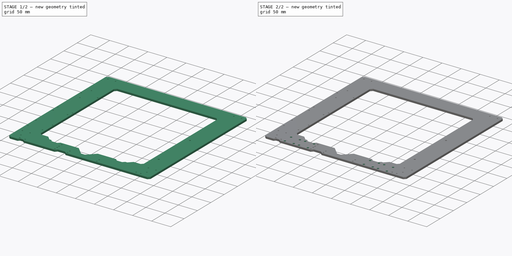
[diagram: build sequence overview — one tinted view per stage of 2, left to right]
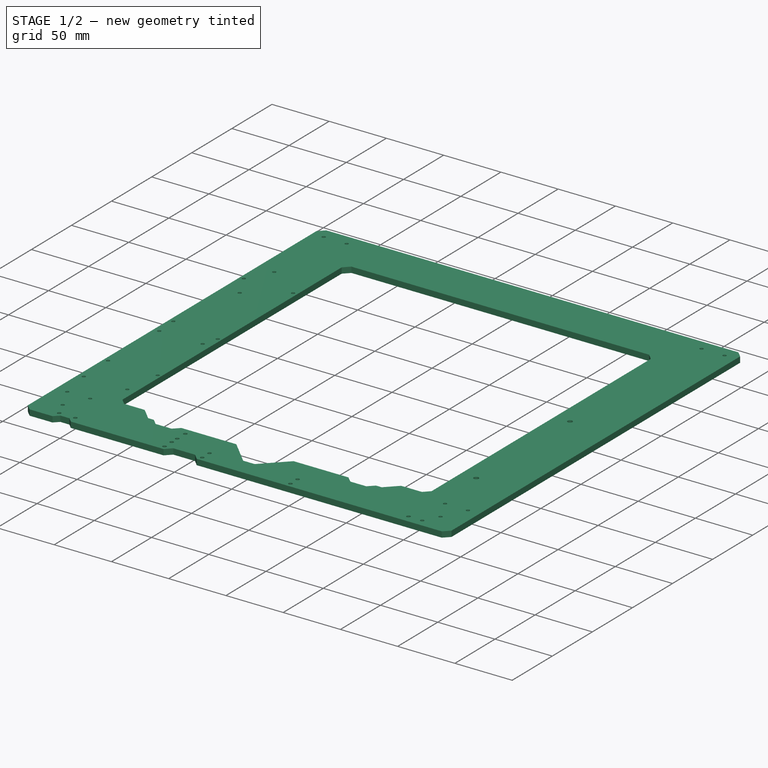
[diagram: stage 1 of 2 — iso view after this stage's code; geometry added in this stage tinted green]
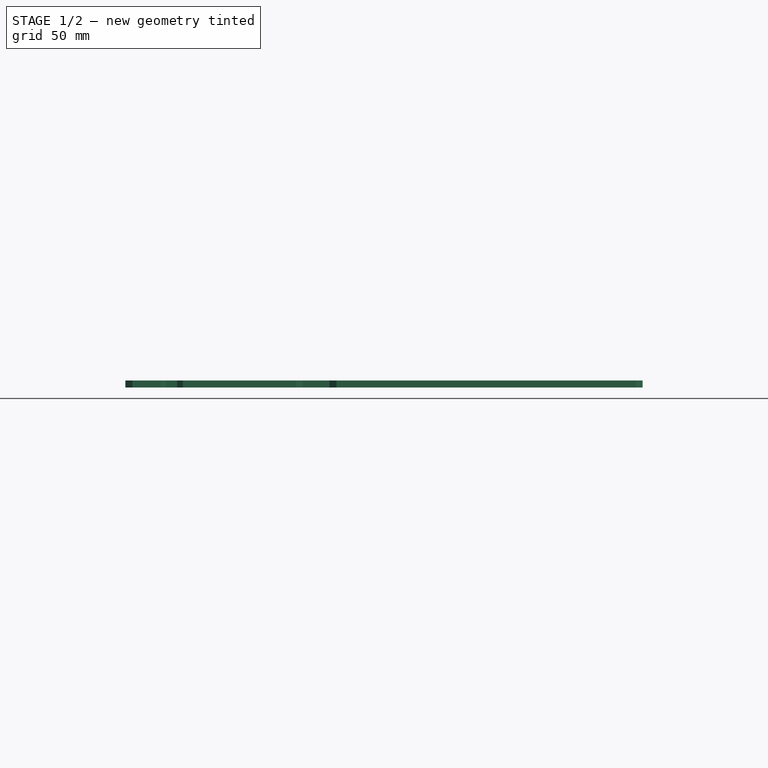
[diagram: stage 1 of 2 — front view after this stage's code; geometry added in this stage tinted green]
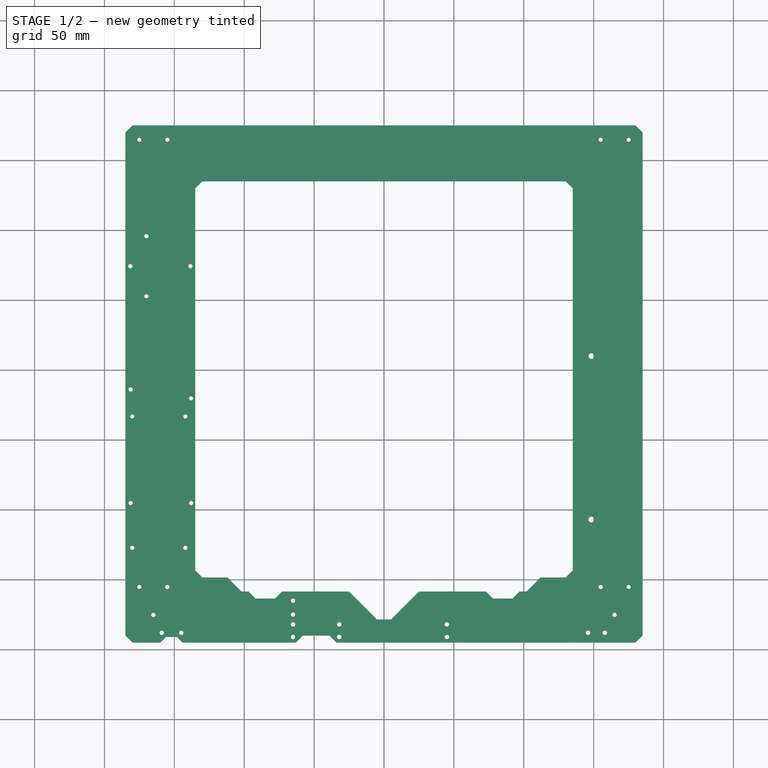
[diagram: stage 1 of 2 — top view after this stage's code; geometry added in this stage tinted green]
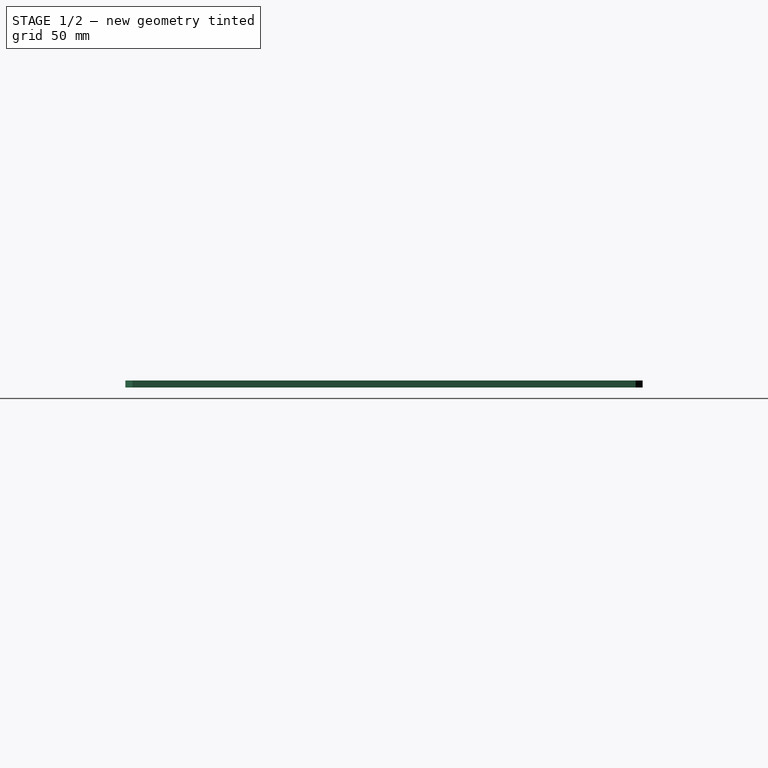
[diagram: stage 1 of 2 — right view after this stage's code; geometry added in this stage tinted green]
FCSTD DOCUMENT  (FreeCAD 0.21R33771 (Git))
Label: _MK3-Frame
License: Creative Commons Attribution 4.0
LicenseURL: https://creativecommons.org/licenses/by/4.0/
objects: Sketcher::SketchObject×3, PartDesign::Pocket×2, PartDesign::Pad×1, PartDesign::Body×1
note: 10 computed .brp shape members not serialized (recipe doc carries the construction recipe); baked Part::Feature solids carry a one-line shape summary decoded from their .brp

FEATURE [Sketcher::SketchObject] Sketch
  FullyConstrained = true
  MapMode = 5
  sketch-geometry (40):
    g0: LineSegment StartX=-180 StartY=375 StartZ=0 EndX=180 EndY=375 EndZ=0
    g1: LineSegment StartX=180 StartY=375 StartZ=0 EndX=185 EndY=370 EndZ=0
    g2: LineSegment StartX=185 StartY=370 StartZ=0 EndX=185 EndY=10 EndZ=0
    g3: LineSegment StartX=185 StartY=10 StartZ=0 EndX=180 EndY=5 EndZ=0
    g4: LineSegment StartX=180 StartY=5 StartZ=0 EndX=-34 EndY=5 EndZ=0
    g5: LineSegment StartX=-34 StartY=5 StartZ=0 EndX=-39 EndY=10 EndZ=0
    g6: LineSegment StartX=-39 StartY=10 StartZ=0 EndX=-58 EndY=10 EndZ=0
    g7: LineSegment StartX=-58 StartY=10 StartZ=0 EndX=-63 EndY=5 EndZ=0
    g8: LineSegment StartX=-63 StartY=5 StartZ=0 EndX=-144 EndY=5 EndZ=0
    g9: LineSegment StartX=-144 StartY=5 StartZ=0 EndX=-148 EndY=9 EndZ=0
    g10: LineSegment StartX=-148 StartY=9 StartZ=0 EndX=-156 EndY=9 EndZ=0
    g11: LineSegment StartX=-156 StartY=9 StartZ=0 EndX=-160 EndY=5 EndZ=0
    g12: LineSegment StartX=-160 StartY=5 StartZ=0 EndX=-180 EndY=5 EndZ=0
    g13: LineSegment StartX=-180 StartY=5 StartZ=0 EndX=-185 EndY=10 EndZ=0
    g14: LineSegment StartX=-185 StartY=10 StartZ=0 EndX=-185 EndY=370 EndZ=0
    g15: LineSegment StartX=-185 StartY=370 StartZ=0 EndX=-180 EndY=375 EndZ=0
    g16: LineSegment StartX=-135 StartY=56.5 StartZ=0 EndX=-135 EndY=330 EndZ=0
    g17: LineSegment StartX=-135 StartY=330 StartZ=0 EndX=-130 EndY=335 EndZ=0
    g18: LineSegment StartX=-130 StartY=335 StartZ=0 EndX=130 EndY=335 EndZ=0
    g19: LineSegment StartX=130 StartY=335 StartZ=0 EndX=135 EndY=330 EndZ=0
    g20: LineSegment StartX=135 StartY=330 StartZ=0 EndX=135 EndY=56.5 EndZ=0
    g21: LineSegment StartX=135 StartY=56.5 StartZ=0 EndX=130 EndY=51.5 EndZ=0
    g22: LineSegment StartX=130 StartY=51.5 StartZ=0 EndX=112 EndY=51.5 EndZ=0
    g23: LineSegment StartX=112 StartY=51.5 StartZ=0 EndX=102 EndY=41.5 EndZ=0
    g24: LineSegment StartX=102 StartY=41.5 StartZ=0 EndX=97 EndY=41.5 EndZ=0
    g25: LineSegment StartX=97 StartY=41.5 StartZ=0 EndX=92 EndY=36.5 EndZ=0
    g26: LineSegment StartX=92 StartY=36.5 StartZ=0 EndX=78 EndY=36.5 EndZ=0
    g27: LineSegment StartX=78 StartY=36.5 StartZ=0 EndX=73 EndY=41.5 EndZ=0
    g28: LineSegment StartX=73 StartY=41.5 StartZ=0 EndX=25 EndY=41.5 EndZ=0
    g29: LineSegment StartX=25 StartY=41.5 StartZ=0 EndX=5 EndY=21.5 EndZ=0
    g30: LineSegment StartX=5 StartY=21.5 StartZ=0 EndX=-5 EndY=21.5 EndZ=0
    g31: LineSegment StartX=-5 StartY=21.5 StartZ=0 EndX=-25 EndY=41.5 EndZ=0
    g32: LineSegment StartX=-25 StartY=41.5 StartZ=0 EndX=-73 EndY=41.5 EndZ=0
    g33: LineSegment StartX=-73 StartY=41.5 StartZ=0 EndX=-78 EndY=36.5 EndZ=0
    g34: LineSegment StartX=-78 StartY=36.5 StartZ=0 EndX=-92 EndY=36.5 EndZ=0
    g35: LineSegment StartX=-92 StartY=36.5 StartZ=0 EndX=-97 EndY=41.5 EndZ=0
    g36: LineSegment StartX=-97 StartY=41.5 StartZ=0 EndX=-102 EndY=41.5 EndZ=0
    g37: LineSegment StartX=-102 StartY=41.5 StartZ=0 EndX=-112 EndY=51.5 EndZ=0
    g38: LineSegment StartX=-112 StartY=51.5 StartZ=0 EndX=-130 EndY=51.5 EndZ=0
    g39: LineSegment StartX=-130 StartY=51.5 StartZ=0 EndX=-135 EndY=56.5 EndZ=0
  constraints (117):
    c: Coincident(g0,g1)
    c: Coincident(g1,g2)
    c: Vertical(g2)
    c: Coincident(g2,g3)
    c: Coincident(g3,g4)
    c: Horizontal(g4)
    c: Coincident(g4,g5)
    c: Coincident(g5,g6)
    c: Horizontal(g6)
    c: Coincident(g6,g7)
    c: Coincident(g7,g8)
    c: Horizontal(g8)
    c: Coincident(g8,g9)
    c: Coincident(g9,g10)
    c: Horizontal(g10)
    c: Coincident(g10,g11)
    c: Coincident(g11,g12)
    c: Coincident(g12,g13)
    c: Coincident(g13,g14)
    c: Vertical(g14)
    c: Coincident(g14,g15)
    c: Coincident(g15,g0)
    c: Symmetric(g0,g0,g-2)
    c: DistanceX(g0,g0) = 360
    c: Angle(g15,g0) = 2.35619
    c: DistanceY(g14,g0) = 5
    c: Equal(g15,g1)
    c: Perpendicular(g15,g1)
    c: Horizontal(g12)
    c: DistanceY(g-1,g12) = 5
    c: Perpendicular(g13,g15)
    c: Equal(g13,g15)
    c: Perpendicular(g3,g13)
    c: Equal(g3,g13)
    c: Horizontal(g4,g7)
    c: Horizontal(g11,g8)
    c: Perpendicular(g11,g13)
    c: DistanceY(g11,g10) = 4
    c: Perpendicular(g9,g11)
    c: DistanceX(g11,g8) = 16
    c: Perpendicular(g7,g9)
    c: Perpendicular(g5,g7)
    c: Horizontal(g6,g13)
    c: DistanceX(g8,g8) = 81
    c: DistanceX(g7,g4) = 29
    c: DistanceX(g4,g-1) = 34
    c: Vertical(g16)
    c: Coincident(g16,g17)
    c: Coincident(g17,g18)
    c: Coincident(g18,g19)
    c: Coincident(g19,g20)
    c: Vertical(g20)
    c: Coincident(g20,g21)
    c: Coincident(g21,g22)
    c: Horizontal(g22)
    c: Coincident(g22,g23)
    c: Coincident(g23,g24)
    c: Horizontal(g24)
    c: Coincident(g24,g25)
    c: Coincident(g25,g26)
    c: Horizontal(g26)
    c: Coincident(g26,g27)
    c: Coincident(g27,g28)
    c: Horizontal(g28)
    c: Coincident(g28,g29)
    c: Coincident(g29,g30)
    c: Horizontal(g30)
    c: Symmetric(g17,g18,g-2)
    c: Perpendicular(g17,g19)
    c: Equal(g19,g17)
    c: Equal(g15,g17)
    c: Parallel(g15,g17)
    c: DistanceX(g16,g19) = 270
    c: DistanceY(g12,g17) = 330
    c: DistanceY(g12,g0) = 370
    c: Coincident(g30,g31)
    c: Coincident(g31,g32)
    c: Horizontal(g32)
    c: Coincident(g32,g33)
    c: Coincident(g33,g34)
    c: Horizontal(g34)
    c: Coincident(g34,g35)
    c: Coincident(g35,g36)
    c: Coincident(g36,g37)
    c: Coincident(g37,g38)
    c: Horizontal(g38)
    c: Coincident(g38,g39)
    c: Coincident(g39,g16)
    c: Perpendicular(g21,g19)
    c: Equal(g19,g21)
    c: DistanceY(g21,g18) = 283.5
    c: Equal(g21,g39)
    c: Perpendicular(g21,g39)
    c: Horizontal(g22,g37)
    c: Horizontal(g35,g32)
    c: Horizontal(g27,g24)
    c: Equal(g38,g22)
    c: Horizontal(g36)
    c: Horizontal(g33,g26)
    c: Equal(g31,g29)
    c: Perpendicular(g31,g29)
    c: Symmetric(g28,g31,g-2)
    c: DistanceY(g4,g30) = 16.5
    c: DistanceY(g3,g27) = 36.5
    c: DistanceX(g31,g28) = 50
    c: Equal(g32,g28)
    c: DistanceX(g32,g27) = 146
    c: Perpendicular(g33,g31)
    c: Perpendicular(g29,g27)
    c: DistanceY(g33,g32) = 5
    c: Equal(g34,g26)
    c: Perpendicular(g35,g33)
    c: DistanceX(g35,g32) = 24
    c: Perpendicular(g25,g27)
    c: Parallel(g23,g21)
    c: Parallel(g39,g37)
    c: DistanceX(g37,g22) = 224
FEATURE [PartDesign::Pad] Pad
  Direction = (0,0,1)
  Length = 5
  Length2 = 10
  Profile = -> Sketch
  ReferenceAxis = -> Sketch [N_Axis]
  Refine = true
  Type = 0
FEATURE [Sketcher::SketchObject] Sketch001
  AttachmentOffset = pos=(0,0,5) rot=(0,0,1;0rad)
  ExternalGeometry = -> [Sketch]
  FullyConstrained = true
  MapMode = 5
  Placement = pos=(0,0,5) rot=(0,0,1;0rad)
  expr: .AttachmentOffset.Base.z = Pad.Length
  expr: .Placement.Base.z = Pad.Length
  sketch-geometry (37):
    g0: Circle CenterX=-175 CenterY=364.8 CenterZ=0 NormalX=0 NormalY=0 NormalZ=1 AngleXU=0 Radius=1.5
    g1: Circle CenterX=-155 CenterY=364.8 CenterZ=0 NormalX=0 NormalY=0 NormalZ=1 AngleXU=0 Radius=1.5
    g2: Circle CenterX=155 CenterY=364.8 CenterZ=0 NormalX=0 NormalY=0 NormalZ=1 AngleXU=0 Radius=1.5
    g3: Circle CenterX=175 CenterY=364.8 CenterZ=0 NormalX=0 NormalY=0 NormalZ=1 AngleXU=0 Radius=1.5
    g4: Circle CenterX=-175 CenterY=44.8 CenterZ=0 NormalX=0 NormalY=0 NormalZ=1 AngleXU=0 Radius=1.5
    g5: Circle CenterX=-155 CenterY=44.8 CenterZ=0 NormalX=0 NormalY=0 NormalZ=1 AngleXU=0 Radius=1.5
    g6: Circle CenterX=155 CenterY=44.8 CenterZ=0 NormalX=0 NormalY=0 NormalZ=1 AngleXU=0 Radius=1.5
    g7: Circle CenterX=175 CenterY=44.8 CenterZ=0 NormalX=0 NormalY=0 NormalZ=1 AngleXU=0 Radius=1.5
    g8: GeomPoint X=0 Y=5 Z=0
    g9: Circle CenterX=-32 CenterY=18 CenterZ=0 NormalX=0 NormalY=0 NormalZ=1 AngleXU=0 Radius=1.6
    g10: Circle CenterX=-32 CenterY=9 CenterZ=0 NormalX=0 NormalY=0 NormalZ=1 AngleXU=0 Radius=1.6
    g11: Circle CenterX=-65 CenterY=18 CenterZ=0 NormalX=0 NormalY=0 NormalZ=1 AngleXU=0 Radius=1.6
    g12: Circle CenterX=-65 CenterY=9 CenterZ=0 NormalX=0 NormalY=0 NormalZ=1 AngleXU=0 Radius=1.6
    g13: Circle CenterX=45 CenterY=18 CenterZ=0 NormalX=0 NormalY=0 NormalZ=1 AngleXU=0 Radius=1.6
    g14: Circle CenterX=45 CenterY=9 CenterZ=0 NormalX=0 NormalY=0 NormalZ=1 AngleXU=0 Radius=1.6
    g15: Circle CenterX=-65 CenterY=25 CenterZ=0 NormalX=0 NormalY=0 NormalZ=1 AngleXU=0 Radius=1.6
    g16: Circle CenterX=-65 CenterY=35 CenterZ=0 NormalX=0 NormalY=0 NormalZ=1 AngleXU=0 Radius=1.6
    g17: Circle CenterX=-165 CenterY=24.8 CenterZ=0 NormalX=0 NormalY=0 NormalZ=1 AngleXU=0 Radius=1.5
    g18: Circle CenterX=-159 CenterY=12 CenterZ=0 NormalX=0 NormalY=0 NormalZ=1 AngleXU=0 Radius=1.6
    g19: Circle CenterX=-145 CenterY=12 CenterZ=0 NormalX=0 NormalY=0 NormalZ=1 AngleXU=0 Radius=1.6
    g20: Circle CenterX=165 CenterY=24.8 CenterZ=0 NormalX=0 NormalY=0 NormalZ=1 AngleXU=0 Radius=1.5
    g21: Circle CenterX=146 CenterY=12 CenterZ=0 NormalX=0 NormalY=0 NormalZ=1 AngleXU=0 Radius=1.6
    g22: Circle CenterX=158 CenterY=12 CenterZ=0 NormalX=0 NormalY=0 NormalZ=1 AngleXU=0 Radius=1.6
    g23: Circle CenterX=-142.1 CenterY=72.8 CenterZ=0 NormalX=0 NormalY=0 NormalZ=1 AngleXU=0 Radius=1.5
    g24: Circle CenterX=-138 CenterY=104.8 CenterZ=0 NormalX=0 NormalY=0 NormalZ=1 AngleXU=0 Radius=1.5
    g25: Circle CenterX=-180.1 CenterY=72.8 CenterZ=0 NormalX=0 NormalY=0 NormalZ=1 AngleXU=0 Radius=1.5
    g26: Circle CenterX=-181.3 CenterY=186.1 CenterZ=0 NormalX=0 NormalY=0 NormalZ=1 AngleXU=0 Radius=1.5
    g27: Circle CenterX=-180.1 CenterY=166.8 CenterZ=0 NormalX=0 NormalY=0 NormalZ=1 AngleXU=0 Radius=1.5
    g28: Circle CenterX=-181.3 CenterY=104.8 CenterZ=0 NormalX=0 NormalY=0 NormalZ=1 AngleXU=0 Radius=1.5
    g29: Circle CenterX=-142.1 CenterY=166.8 CenterZ=0 NormalX=0 NormalY=0 NormalZ=1 AngleXU=0 Radius=1.5
    g30: Circle CenterX=-138 CenterY=179.7 CenterZ=0 NormalX=0 NormalY=0 NormalZ=1 AngleXU=0 Radius=1.5
    g31: Circle CenterX=-170 CenterY=252.8 CenterZ=0 NormalX=0 NormalY=0 NormalZ=1 AngleXU=0 Radius=1.5
    g32: Circle CenterX=-181.5 CenterY=274.3 CenterZ=0 NormalX=0 NormalY=0 NormalZ=1 AngleXU=0 Radius=1.5
    g33: Circle CenterX=-170 CenterY=295.8 CenterZ=0 NormalX=0 NormalY=0 NormalZ=1 AngleXU=0 Radius=1.5
    g34: Circle CenterX=-138.5 CenterY=274.3 CenterZ=0 NormalX=0 NormalY=0 NormalZ=1 AngleXU=0 Radius=1.5
    g35: Circle CenterX=148.4 CenterY=210 CenterZ=0 NormalX=0 NormalY=0 NormalZ=1 AngleXU=0 Radius=2.1
    g36: Circle CenterX=148.4 CenterY=93 CenterZ=0 NormalX=0 NormalY=0 NormalZ=1 AngleXU=0 Radius=2.1
  constraints (108):
    c: Horizontal(g0,g1)
    c: DistanceX(g0,g1) = 20
    c: Horizontal(g2,g3)
    c: DistanceX(g2,g3) = 20
    c: DistanceX(g1,g2) = 310
    c: Horizontal(g7,g6)
    c: Horizontal(g6,g5)
    c: Horizontal(g5,g4)
    c: Vertical(g4,g0)
    c: Vertical(g1,g5)
    c: Vertical(g2,g6)
    c: Vertical(g7,g3)
    c: Equal(g3,g7)
    c: Equal(g7,g6)
    c: Equal(g6,g5)
    c: Equal(g5,g4)
    c: PointOnObject(g8,g-2)
    c: PointOnObject(g8,g-3)
    c: DistanceY(g8,g7) = 39.8
    c: Symmetric(g2,g1,g-2)
    c: Equal(g3,g2)
    c: Equal(g2,g1)
    c: Equal(g1,g0)
    c: Diameter(g1) = 3
    c: DistanceY(g7,g3) = 320
    c: Horizontal(g11,g9)
    c: Horizontal(g10,g12)
    c: Vertical(g11,g12)
    c: Vertical(g9,g10)
    c: Vertical(g13,g14)
    c: Horizontal(g9,g13)
    c: Horizontal(g14,g10)
    c: DistanceX(g12,g8) = 65
    c: DistanceX(g8,g14) = 45
    c: DistanceX(g10,g8) = 32
    c: DistanceY(g14,g13) = 9
    c: DistanceY(g8,g10) = 4
    c: Equal(g11,g12)
    c: Equal(g11,g9)
    c: Equal(g11,g10)
    c: Equal(g11,g13)
    c: Equal(g11,g14)
    c: Diameter(g11) = 3.2
    c: Vertical(g11,g15)
    c: Vertical(g15,g16)
    c: DistanceY(g11,g15) = 7
    c: DistanceY(g15,g16) = 10
    c: Equal(g11,g15)
    c: Equal(g15,g16)
    c: Equal(g6,g20)
    c: Symmetric(g20,g17,g-2)
    c: DistanceX(g17,g20) = 330
    c: DistanceY(g20,g7) = 20
    c: Equal(g20,g17)
    c: Horizontal(g22,g21)
    c: Horizontal(g21,g19)
    c: Horizontal(g19,g18)
    c: DistanceX(g18,g19) = 14
    c: DistanceX(g21,g22) = 12
    c: DistanceX(g8,g21) = 146
    c: DistanceY(g8,g21) = 7
    c: DistanceX(g19,g8) = 145
    c: Equal(g18,g19)
    c: Equal(g19,g21)
    c: Equal(g21,g22)
    c: Equal(g22,g14)
    c: DistanceX(g32,g34) = 43
    c: DistanceY(g31,g33) = 43
    c: Vertical(g31,g33)
    c: Horizontal(g32,g34)
    c: DistanceX(g34,g-1) = 138.5
    c: DistanceX(g31,g-1) = 170
    c: DistanceX(g25,g23) = 38
    c: DistanceY(g25,g27) = 94
    c: Vertical(g25,g27)
    c: Vertical(g29,g23)
    c: Horizontal(g25,g23)
    c: Horizontal(g27,g29)
    c: DistanceY(g8,g25) = 67.8
    c: DistanceY(g8,g31) = 247.8
    c: DistanceY(g8,g32) = 269.3
    c: DistanceX(g23,g8) = 142.1
    c: DistanceX(g24,g8) = 138
    c: Horizontal(g28,g24)
    c: DistanceX(g28,g24) = 43.3
    c: Vertical(g28,g26)
    c: Vertical(g24,g30)
    c: DistanceY(g28,g26) = 81.3
    c: DistanceY(g8,g28) = 99.8
    c: DistanceY(g24,g30) = 74.9
    c: Equal(g4,g25)
    c: Equal(g25,g23)
    c: Equal(g23,g24)
    c: Equal(g24,g28)
    c: Equal(g28,g27)
    c: Equal(g27,g29)
    c: Equal(g29,g30)
    c: Equal(g30,g26)
    c: Equal(g26,g31)
    c: Equal(g31,g32)
    c: Equal(g32,g34)
    c: Equal(g34,g33)
    c: DistanceY(g36,g35) = 117
    c: DistanceY(g8,g36) = 88
    c: DistanceX(g8,g36) = 148.4
    c: Vertical(g36,g35)
    c: Equal(g35,g36)
    c: Diameter(g35) = 4.2
FEATURE [PartDesign::Pocket] Pocket
  BaseFeature = -> Pad
  Direction = (0,0,-1)
  Length = 5
  Length2 = 5
  Profile = -> Sketch001
  ReferenceAxis = -> Sketch001 [N_Axis]
  Refine = true
  Type = 1
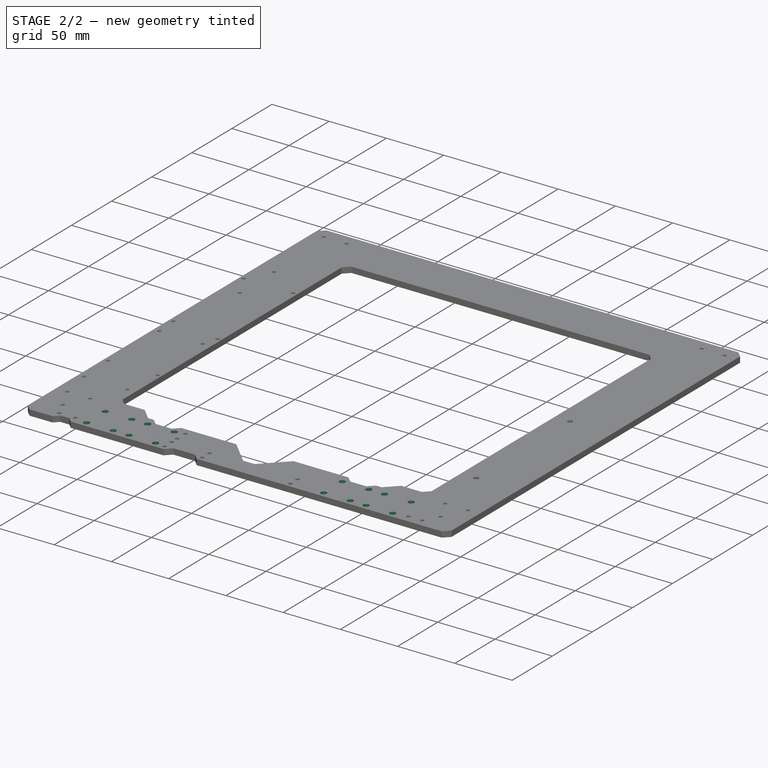
[diagram: stage 2 of 2 — iso view after this stage's code; geometry added in this stage tinted green]
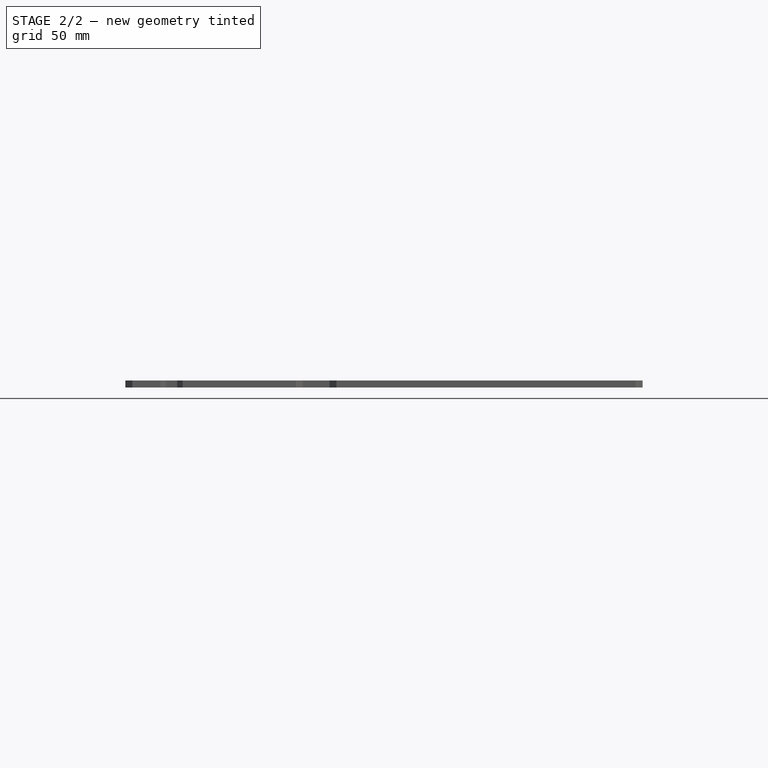
[diagram: stage 2 of 2 — front view after this stage's code; geometry added in this stage tinted green]
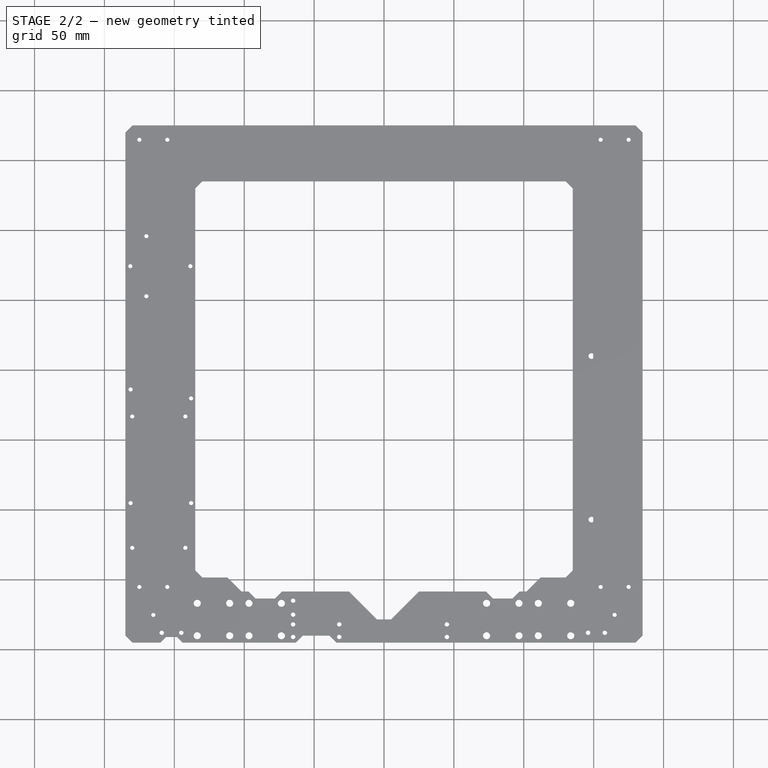
[diagram: stage 2 of 2 — top view after this stage's code; geometry added in this stage tinted green]
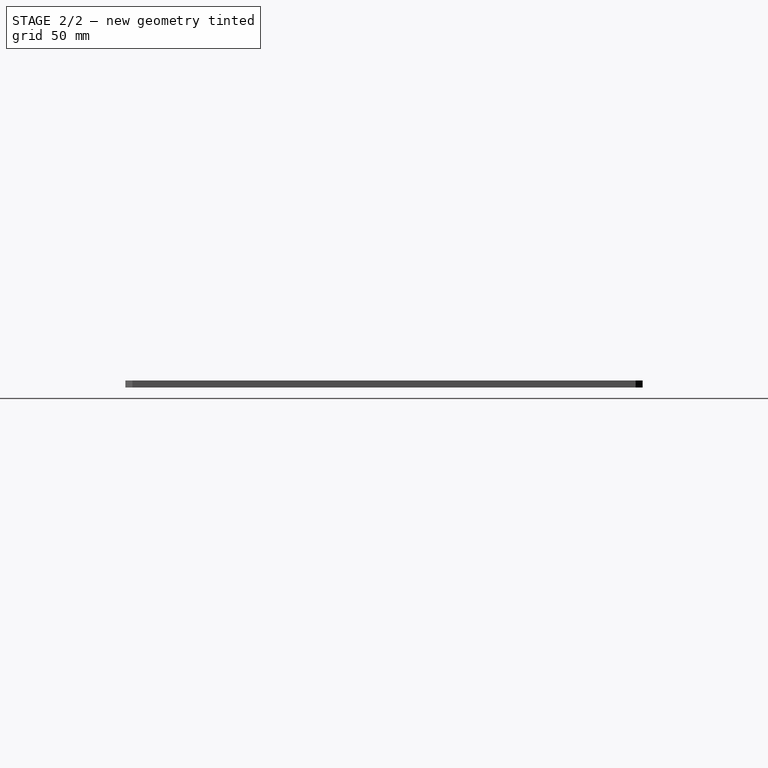
[diagram: stage 2 of 2 — right view after this stage's code; geometry added in this stage tinted green]
FEATURE [Sketcher::SketchObject] Sketch002
  AttachmentOffset = pos=(0,0,5) rot=(0,0,1;0rad)
  ExternalGeometry = -> [Sketch]
  FullyConstrained = true
  MapMode = 5
  Placement = pos=(0,0,5) rot=(0,0,1;0rad)
  Support = -> [XY_Plane002]
  expr: .AttachmentOffset.Base.z = Pad.Length
  sketch-geometry (17):
    g0: GeomPoint X=0 Y=5 Z=0
    g1: Circle CenterX=-133.6 CenterY=33.1 CenterZ=0 NormalX=0 NormalY=0 NormalZ=1 AngleXU=0 Radius=2.55
    g2: Circle CenterX=-110.4 CenterY=33.1 CenterZ=0 NormalX=0 NormalY=0 NormalZ=1 AngleXU=0 Radius=2.55
    g3: Circle CenterX=-96.6 CenterY=33.1 CenterZ=0 NormalX=0 NormalY=0 NormalZ=1 AngleXU=0 Radius=2.55
    g4: Circle CenterX=-73.4 CenterY=33.1 CenterZ=0 NormalX=0 NormalY=0 NormalZ=1 AngleXU=0 Radius=2.55
    g5: Circle CenterX=-73.4 CenterY=9.9 CenterZ=0 NormalX=0 NormalY=0 NormalZ=1 AngleXU=0 Radius=2.55
    g6: Circle CenterX=-96.6 CenterY=9.9 CenterZ=0 NormalX=0 NormalY=0 NormalZ=1 AngleXU=0 Radius=2.55
    g7: Circle CenterX=-110.4 CenterY=9.9 CenterZ=0 NormalX=0 NormalY=0 NormalZ=1 AngleXU=0 Radius=2.55
    g8: Circle CenterX=-133.6 CenterY=9.9 CenterZ=0 NormalX=0 NormalY=0 NormalZ=1 AngleXU=0 Radius=2.55
    g9: Circle CenterX=73.4 CenterY=33.1 CenterZ=0 NormalX=0 NormalY=0 NormalZ=1 AngleXU=0 Radius=2.55
    g10: Circle CenterX=96.6 CenterY=33.1 CenterZ=0 NormalX=0 NormalY=0 NormalZ=1 AngleXU=0 Radius=2.55
    g11: Circle CenterX=110.4 CenterY=33.1 CenterZ=0 NormalX=0 NormalY=0 NormalZ=1 AngleXU=0 Radius=2.55
    g12: Circle CenterX=133.6 CenterY=33.1 CenterZ=0 NormalX=0 NormalY=0 NormalZ=1 AngleXU=0 Radius=2.55
    g13: Circle CenterX=133.6 CenterY=9.9 CenterZ=0 NormalX=0 NormalY=0 NormalZ=1 AngleXU=0 Radius=2.55
    g14: Circle CenterX=110.4 CenterY=9.9 CenterZ=0 NormalX=0 NormalY=0 NormalZ=1 AngleXU=0 Radius=2.55
    g15: Circle CenterX=96.6 CenterY=9.9 CenterZ=0 NormalX=0 NormalY=0 NormalZ=1 AngleXU=0 Radius=2.55
    g16: Circle CenterX=73.4 CenterY=9.9 CenterZ=0 NormalX=0 NormalY=0 NormalZ=1 AngleXU=0 Radius=2.55
  constraints (50):
    c: PointOnObject(g0,g-3)
    c: PointOnObject(g0,g-2)
    c: Horizontal(g1,g2)
    c: Horizontal(g2,g3)
    c: Horizontal(g3,g4)
    c: Horizontal(g8,g7)
    c: Horizontal(g7,g6)
    c: Horizontal(g6,g5)
    c: Vertical(g1,g8)
    c: Vertical(g2,g7)
    c: Vertical(g3,g6)
    c: Vertical(g4,g5)
    c: DistanceY(g8,g1) = 23.2
    c: DistanceX(g1,g2) = 23.2
    c: DistanceX(g3,g4) = 23.2
    c: DistanceX(g7,g6) = 13.8
    c: DistanceX(g5,g0) = 73.4
    c: DistanceY(g0,g5) = 4.9
    c: Equal(g1,g8)
    c: Equal(g1,g7)
    c: Equal(g1,g2)
    c: Equal(g1,g3)
    c: Equal(g1,g6)
    c: Equal(g1,g5)
    c: Equal(g1,g4)
    c: Diameter(g1) = 5.1
    c: Horizontal(g4,g9)
    c: Horizontal(g9,g10)
    c: Horizontal(g10,g11)
    c: Horizontal(g11,g12)
    c: Horizontal(g5,g16)
    c: Horizontal(g16,g15)
    c: Horizontal(g15,g14)
    c: Horizontal(g14,g13)
    c: Vertical(g13,g12)
    c: Vertical(g14,g11)
    c: Vertical(g15,g10)
    c: Vertical(g16,g9)
    c: DistanceX(g9,g10) = 23.2
    c: DistanceX(g11,g12) = 23.2
    c: DistanceX(g15,g14) = 13.8
    c: DistanceX(g0,g16) = 73.4
    c: Equal(g5,g16)
    c: Equal(g16,g9)
    c: Equal(g9,g10)
    c: Equal(g10,g15)
    c: Equal(g15,g11)
    c: Equal(g11,g14)
    c: Equal(g14,g12)
    c: Equal(g12,g13)
FEATURE [PartDesign::Pocket] Pocket001
  BaseFeature = -> Pocket
  Direction = (0,0,-1)
  Length = 5
  Length2 = 5
  Profile = -> Sketch002
  ReferenceAxis = -> Sketch002 [N_Axis]
  Refine = true
  Type = 1
FEATURE [PartDesign::Body] Body  label="Frame"
  Group = -> [Sketch,Pad,Sketch001,Pocket,Sketch002,Pocket001]
  Origin = -> Origin002
  Tip = -> Pocket001
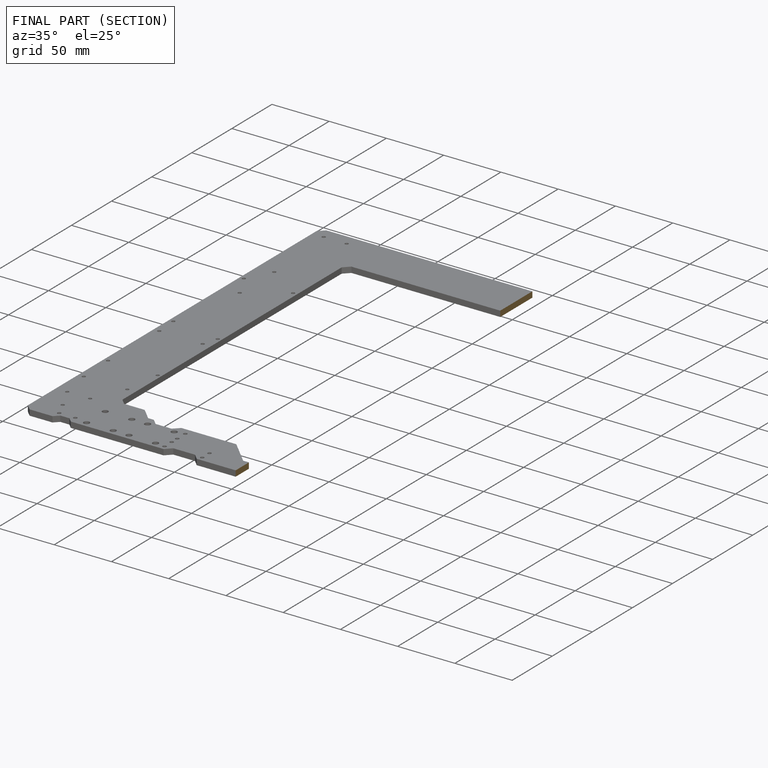
[diagram: finished part — half-section view (interior)]
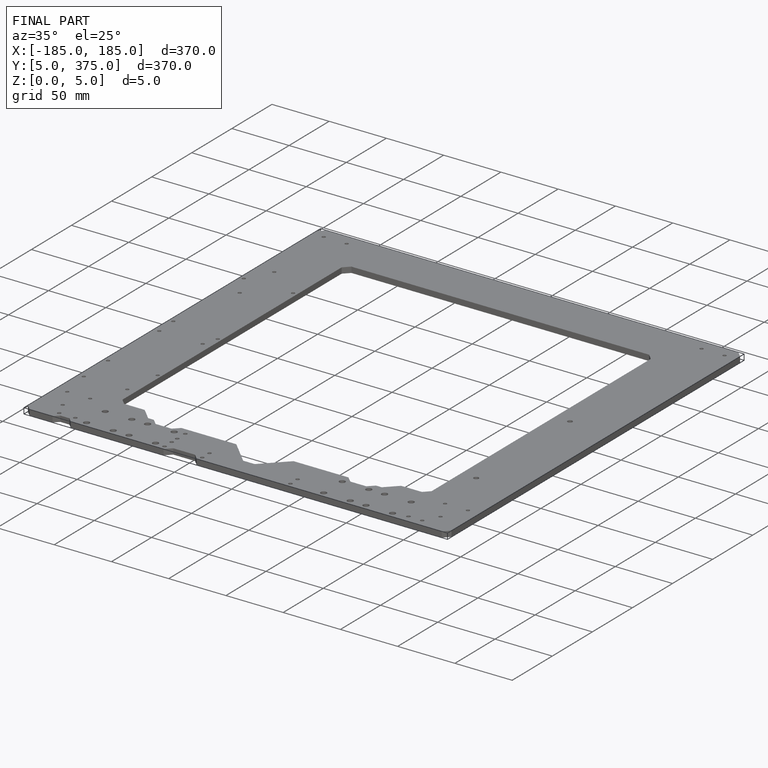
[diagram: finished part — iso view with bounding-box wireframe]
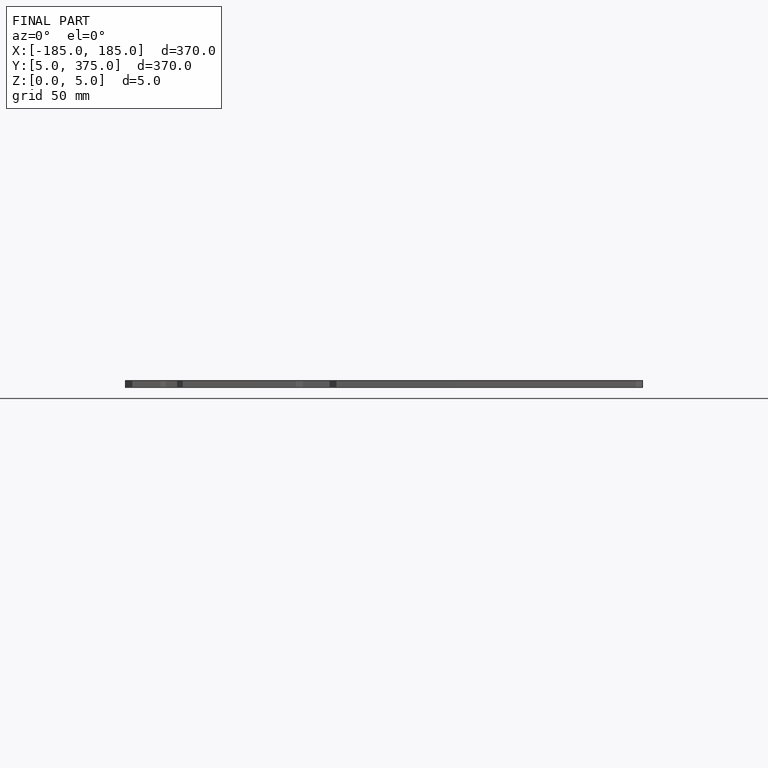
[diagram: finished part — front view with bounding-box wireframe]
